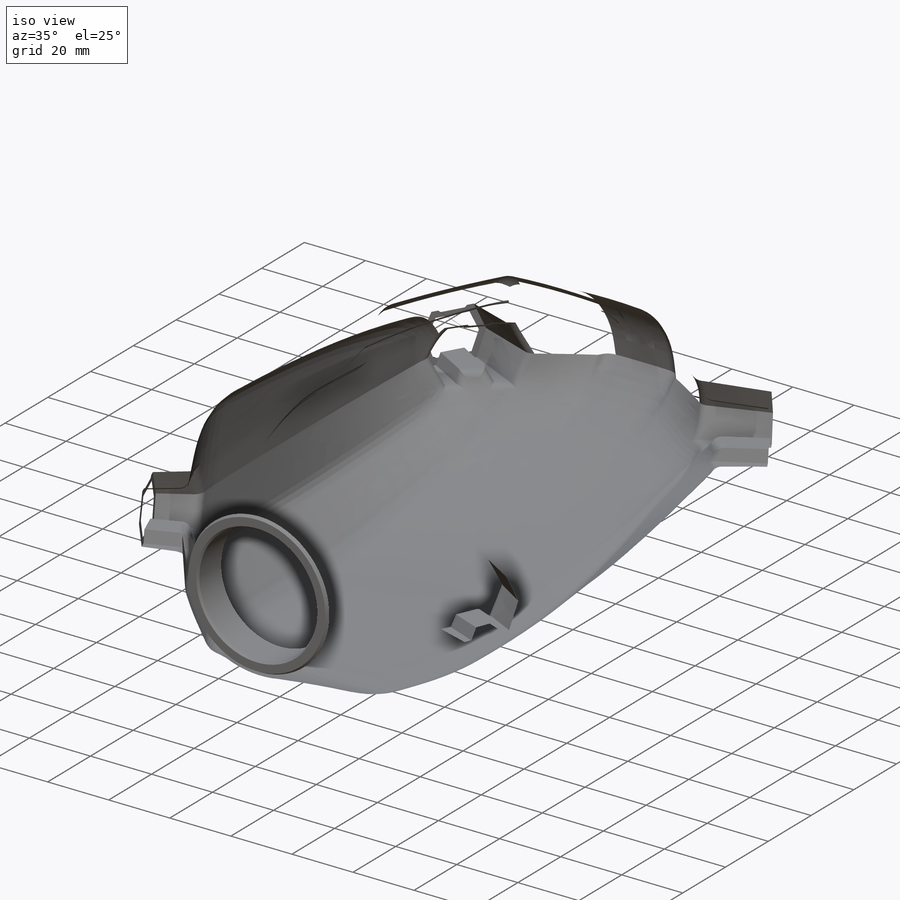
[diagram: iso view]
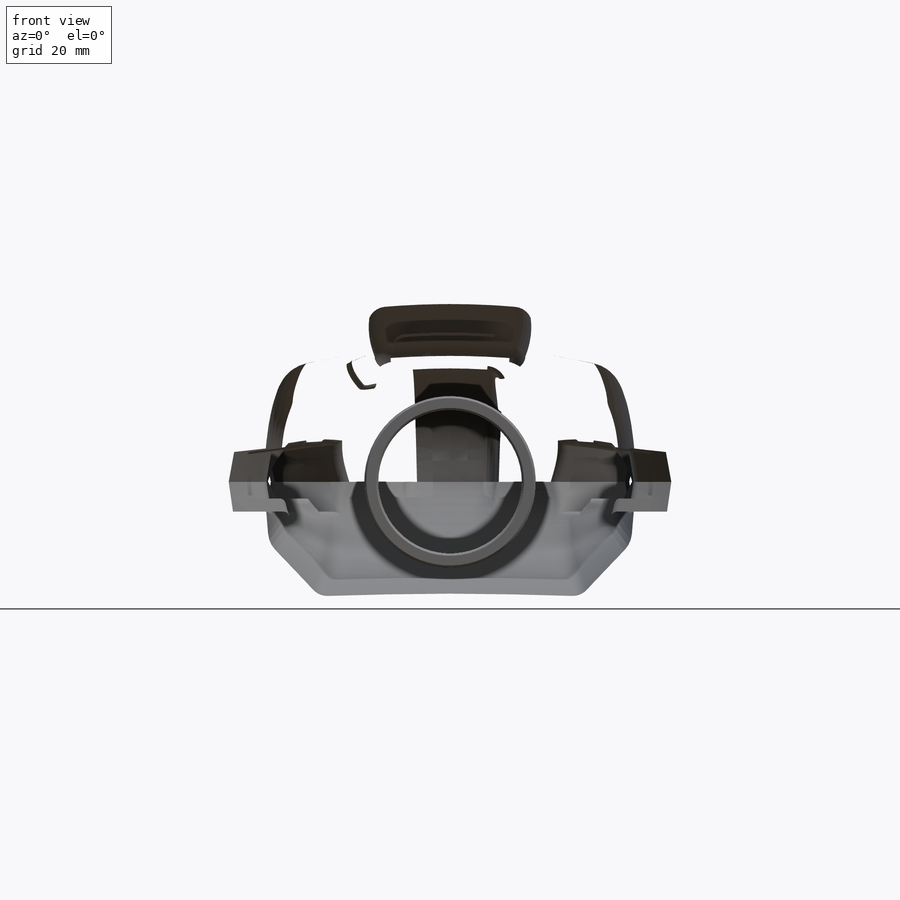
[diagram: front view]
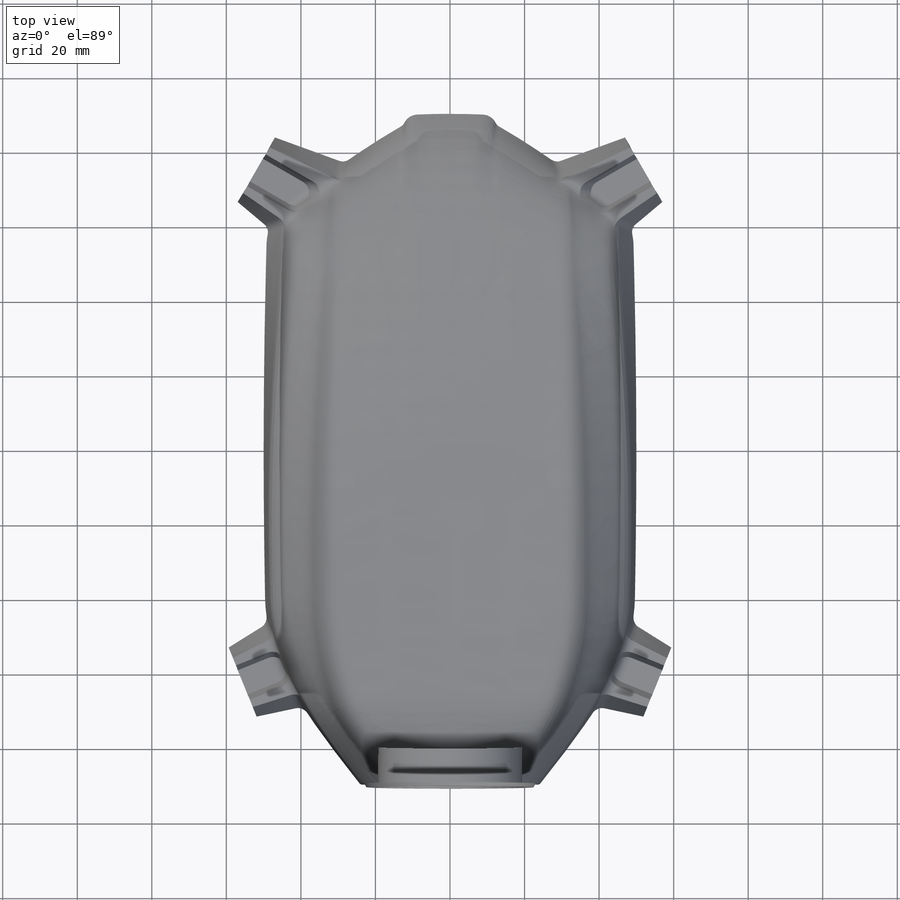
[diagram: top view]
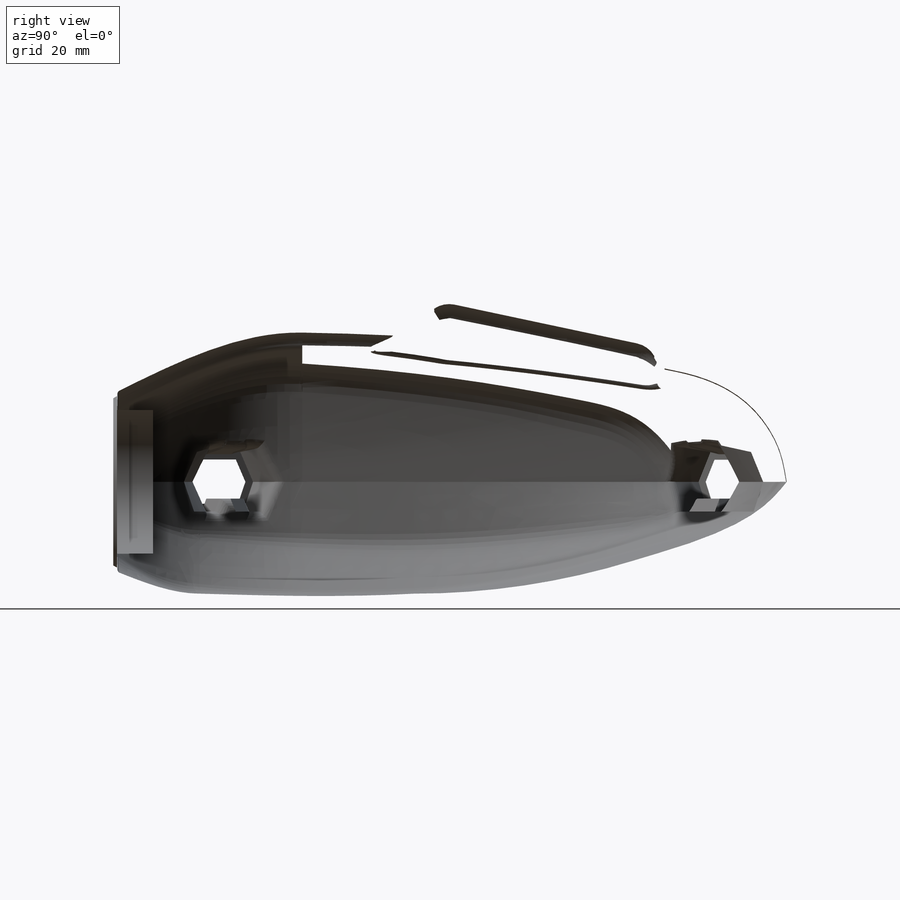
[diagram: right view]
SOLIDWORKS PART (.sldprt)
format: sldprt  version: not decoded by parser v0  size: 6,093,312 bytes
history: native  units: mm
features: sketch x60, plane x20, fillet x13, mirror x5, surface_op x4, material x1 (+13 scaffold rows collapsed)
feature tree (116):
  scaffold x13  (default folders/planes/origin — collapsed)
  material  "Material <not specified>"
  sketch  "Sketch1"  dims[c1.D6=140.0mm c1.D1=150.0mm c1.D2=80.0mm c1.D3=~28.654237mm c2.D1=10.0mm c2.D3=180.0mm c2.D2=100.0mm c2.D4=100.0mm c2.D5=190.0mm c3.D1=60.0mm c3.D4=5.0mm]
  plane  "Plane1"
  sketch  "Sketch4"  dims[D1=130.0mm D2=5.0mm]
  sketch  "Sketch6"  dims[c1.D2=32.0mm c1.D3=300.0mm c1.D5=2000.0mm c1.D1=130.0mm c2.D1=85.0deg c2.D4=40.0mm]
  sketch  "Sketch7"  dims[c1.D1=150.0mm c1.D2=50.0mm c1.D3=5.0mm c1.D4=~40.19282mm c2.D4=110.0deg c2.D5=35.0mm]
  sketch  "Sketch8"  dims[c1.D1=20.0mm c1.D2=200.0mm c1.D3=3.0mm c1.D4=25.0mm c1.D5=30.0mm c2.D5=110.0deg]
  sketch  "Sketch10"  dims[D3=200.0mm D4=2000.0mm D1=2.0mm D2=30.0mm]
  sketch  "Sketch12"  dims[c1.D1=200.0mm c1.D2=250.0mm c1.D4=100.0mm c1.D3=200.0mm c2.D3=95.0deg c2.D4=2.0mm]
  mirror  "Mirror1"
  sketch  "Sketch14"  dims[D1=50.0mm]
  sketch  "Sketch17"  dims[c1.D1=19.0mm c2.D1=30.0deg c2.D2=~16.454483mm c3.D2=25.0deg c3.D3=~17.979857mm c4.D3=10.0deg]
  plane  "Plane2"
  sketch  "Sketch17<5>"
  sketch  "Sketch17<6>"
  sketch  "Sketch17<7>"
  mirror  "Mirror2"
  sketch  "Sketch4<2>"
  sketch  "Sketch28"  dims[c1.D1=~14.349846mm c2.D1=50.0deg c3.D1=1.0deg]
  sketch  "Sketch51"  dims[c1.D3=200.0mm c1.D4=500.0mm c1.D6=~10.626687mm c1.D7=15.0mm c1.D1=~18.033976mm c2.D1=105.0deg c2.D2=30.0mm c2.D5=~26.248479mm c3.D5=12.0deg c3.D6=~14.107234mm c4.D6=7.0deg c4.D8=80.0mm]
  plane  "Plane10"
  plane  "Plane11"
  plane  "Plane12"
  sketch  "Sketch52"  dims[c1.D1=~6.081014mm c2.D1=60.0deg c2.D2=~23.975366mm c3.D2=10.0deg c3.D3=60.0mm]
  sketch  "Sketch53"  dims[c1.D1=~10.899742mm c2.D1=90.0deg c2.D2=70.0mm]
  sketch  "Sketch54"  dims[c1.D2=200.0mm c1.D4=20.0mm c1.D5=700.0mm c1.D1=~12.479901mm c2.D1=45.0deg c2.D2=~24.861722mm c2.D3=~12.450998mm c3.D3=120.0deg c3.D5=65.0mm]
  sketch  "Sketch60"  dims[c1.D1=24.0mm c2.D1=15.0deg c2.D2=~23.18222mm c3.D2=40.0deg]
  sketch  "Sketch60<3>"
  mirror  "Mirror6"
  sketch  "Sketch60<4>"  dims[D1=5.0mm]
  fillet  "Fillet4"  Radius=10mm
  fillet  "Fillet6"  Radius=4mm
  fillet  "Fillet7"  Radius=2mm
  fillet  "Fillet8"  Radius=1mm
  fillet  "Fillet21"  Radius=7mm
  fillet  "Fillet23"  Radius=5mm
  sketch  "Sketch51<8>"
  plane  "Plane16"
  fillet  "Fillet27"  Radius=1mm
  sketch  "Sketch49"  dims[c1.D1=38.5mm c1.D2=19.25mm c2.D1=~48.566095mm c3.D1=0.5deg c3.D2=38.5mm c3.D3=10.0mm c3.D4=1.0mm c3.D5=3.0mm c3.D6=2.6mm c3.D7=0.5mm c3.D8=1.0mm c3.D9=0.5mm c4.D4=0.7mm c4.D5=46.0mm c4.D9=7.0mm c4.D1=360.0deg]
  sketch  "Sketch64"  dims[D1=3.0mm]
  sketch  "Sketch65"  dims[c1.D1=~24.075345mm c2.D1=120.0deg c2.D2=20.0mm c2.D3=~41.256995mm c3.D3=20.0deg c3.D4=70.0mm c3.D5=45.0mm c3.D6=~25.233473mm c4.D6=136.0deg c4.D7=~64.003487mm c5.D7=20.0deg c5.D8=20.0mm c5.D9=70.0mm c5.D10=40.0mm]
  plane  "Plane17"
  sketch  "Sketch66"  dims[c1.D1=8.0mm c1.D2=8.0mm c2.D2=50.0deg]
  plane  "Plane18"
  sketch  "Sketch67"  dims[c1.D1=50.0mm c2.D1=7.0deg]
  sketch  "Sketch68"  dims[c1.D1=~4.574919mm c2.D1=~60.160347deg c3.D1=~6.428835mm c4.D1=45.0deg c5.D1=8.0mm c5.D2=8.0mm c6.D2=40.0deg]
  sketch  "Sketch65<3>"
  sketch  "Sketch69"  dims[c1.D1=~8.489054mm c2.D1=0.5deg c2.D2=~8.476005mm c3.D2=0.5deg]
  surface_op  "Surface-Extrude1"
  sketch  "Sketch70"  dims[D1=2.0mm]
  sketch  "Sketch71"  dims[c1.D1=~1.11482mm c2.D1=90.0deg c2.D2=0.6mm c2.D3=2.0mm]
  sketch  "Sketch67<4>"
  sketch  "Sketch72"  dims[c1.D1=~3.045424mm c2.D1=45.0deg c2.D2=3.5mm c2.D3=7.0mm c2.D4=~2.138491mm]
  surface_op  "Surface-Extrude2"
  plane  "Plane19"
  sketch  "Sketch73"  dims[c1.D1=8.0mm c1.D2=8.0mm c2.D2=50.0deg c2.D3=8.0mm c2.D4=8.0mm c3.D4=40.0deg]
  plane  "Plane20"
  sketch  "Sketch74"  dims[c1.D1=60.0mm c2.D1=7.0deg]
  sketch  "Sketch65<4>"
  sketch  "Sketch65<5>"
  sketch  "Sketch73<4>"
  sketch  "Sketch75"  dims[c1.D1=~8.827622mm c2.D1=0.5deg c2.D2=~8.908218mm c3.D2=0.5deg]
  surface_op  "Surface-Extrude3"
  sketch  "Sketch76"  dims[D1=2.0mm]
  sketch  "Sketch77"  dims[c1.D1=~1.049027mm c2.D1=90.0deg c2.D2=0.6mm c2.D3=2.0mm]
  sketch  "Sketch74<2>"
  sketch  "Sketch78"  dims[c1.D1=~4.480943mm c2.D1=45.0deg c2.D2=7.0mm c2.D3=3.5mm]
  surface_op  "Surface-Extrude4"
  mirror  "Mirror10"
  fillet  "Fillet31"  Radius=2.8mm
  sketch  "Sketch85"  dims[c1.D1=300.0mm c1.D2=300.0mm c1.D7=32.0mm c2.D1=~11.857265mm c3.D1=12.0deg c3.D2=5.0mm c3.D3=~20.049919mm c4.D3=~131.607502deg c5.D3=~20.049919mm c6.D3=120.0deg c7.D3=~20.049919mm c8.D3=120.0deg c8.D4=~37.025949mm c9.D4=145.0deg c9.D5=55.0mm c9.D6=5.0mm c9.D7=5.0mm c9.D8=30.0mm]
  plane  "Plane21"
  sketch  "Sketch87"  dims[c1.D1=~202.866692mm c1.D2=200.0mm c2.D1=~12.782183mm c3.D1=45.0deg c3.D2=~60.752822mm c3.D3=55.0mm c3.D4=10.0mm]
  plane  "Plane22"
  sketch  "Sketch88"  dims[D1=10.0mm D2=45.0mm]
  plane  "Plane24"
  sketch  "Sketch89"  dims[D1=~62.79417mm]
  plane  "Plane25"
  sketch  "Sketch90"  dims[D1=40.0mm]
  sketch  "Sketch87<15>"
  sketch  "Sketch85<9>"
  plane  "Plane26"
  sketch  "Sketch92"  dims[D1=30.0mm]
  sketch  "Sketch88<4>"
  sketch  "Sketch85<10>"
  fillet  "Fillet35"  Radius=7mm
  fillet  "Fillet36"  Radius=5mm
  fillet  "Fillet37"  Radius=2mm
  sketch  "Sketch97"  dims[c1.D1=~10.570503mm c2.D1=7.0deg c2.D2=10.0mm c2.D3=10.0mm c2.D4=35.0mm]
  plane  "Plane31"
  sketch  "Sketch101"  dims[c1.D1=30.0mm c2.D1=85.0deg]
  plane  "Plane28"
  sketch  "Sketch98"  dims[c1.D1=~13.831377mm c2.D1=40.0deg c2.D2=~20.977013mm c3.D2=88.0deg c3.D3=~21.970727mm c4.D3=30.0deg c4.D4=10.0mm c4.D5=15.0mm c4.D6=10.0mm c5.D6=7.0deg c5.D7=~16.198313mm c6.D7=135.0deg c7.D7=18.0mm c7.D8=~0.127215mm]
  plane  "Plane29"
  sketch  "Sketch99"  dims[c1.D1=~35.200411mm c1.D2=0.7mm c1.D3=1.2mm c1.D4=~18055.397585mm c2.D1=2.5mm]
  plane  "Plane30"
  sketch  "Sketch100"  dims[c1.D1=2.5mm c1.D2=~6.290112mm c1.D3=4.5mm c2.D1=~8.092302mm c2.D2=10.0mm c3.D1=8.0mm]
  fillet  "Fillet40"  Radius=0.8mm
  mirror  "Mirror11"
  fillet  "Fillet41"  Radius=2.5mm
  plane  "Plane36"
  sketch  "Sketch122"  dims[D1=45.0mm]
decode coverage: 57 of 82 modeling features carry decoded parameters
note: ~ marks probable driven/reference dimensions
note: suppression state not decoded; provenance and decode notes live in map.json
